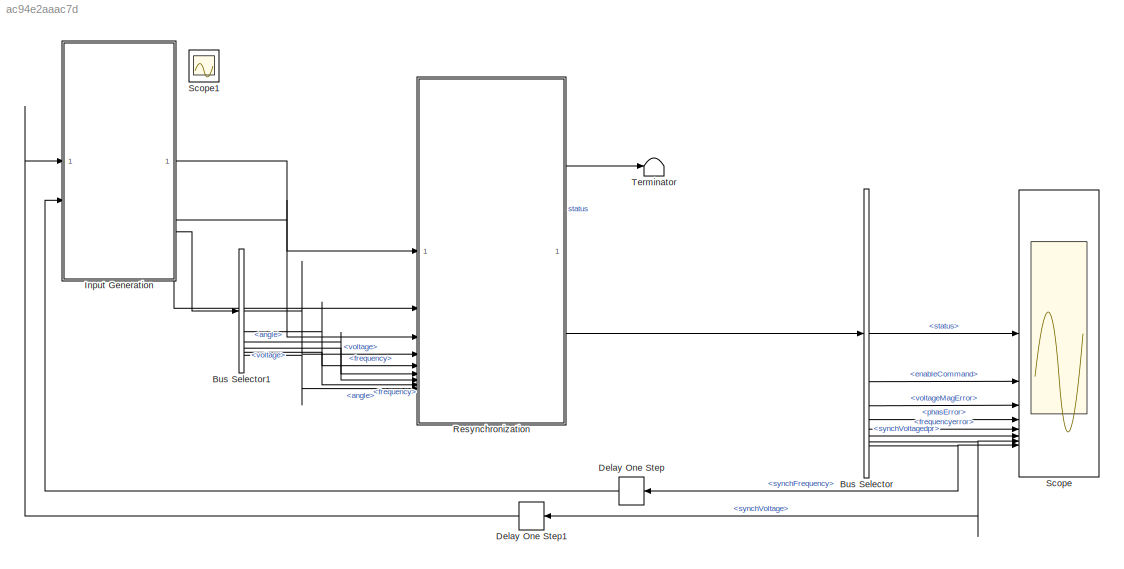
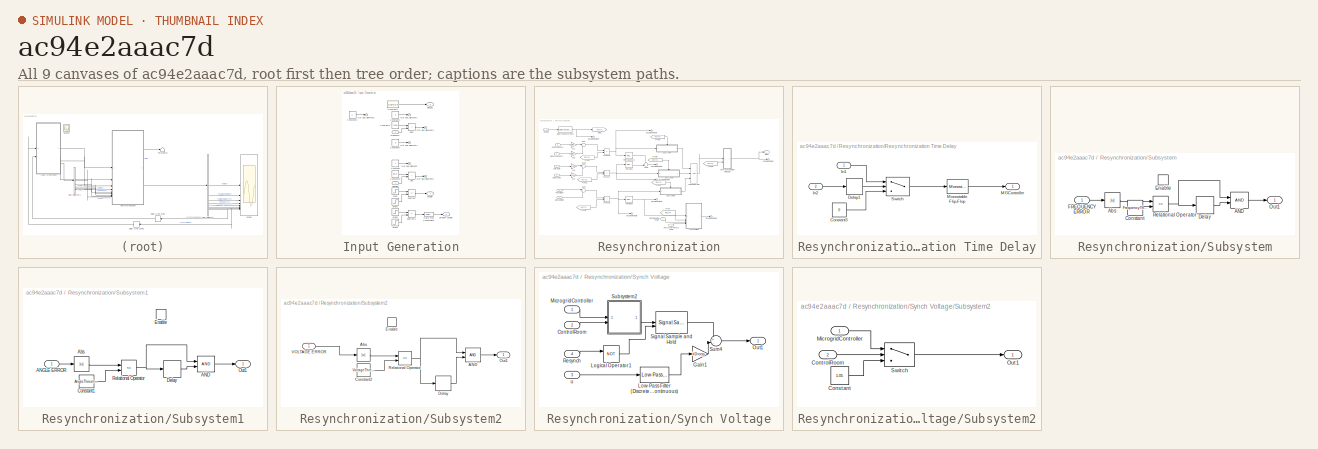
[diagram: thumbnail index - all 9 canvases of the model, root first then tree order]
MODEL slx_ac94e2aaac7d
KIND model
CONFIG AbsTol = auto
CONFIG EnableMultiTasking = off
CONFIG FixedStep = auto
CONFIG MaxStep = auto
CONFIG MinStep = auto
CONFIG PostLoadFcn = ResynchronizationParam;
CONFIG RelTol = 1e-3
CONFIG SampleTimeConstraint = Unconstrained
CONFIG SolverName = FixedStepAuto
CONFIG StartTime = 0.0
CONFIG StopTime = 10
BLOCK [BusSelector] Bus Selector
  OutputSignals = status,enableCommand,voltageMagError,phasError,frequencyerror,synchVoltagedpr,synchVoltage,synchFrequency
BLOCK [BusSelector] Bus Selector1
  OutputSignals = Grid.voltage,Grid.frequency,Grid.angle,Island.voltage,Island.frequency,Island.angle
BLOCK [Delay] Delay One Step
  DelayLength = 1
  InputPortMap = u0
  NameLocation = top
BLOCK [Delay] Delay One Step1
  DelayLength = 1
  InputPortMap = u0
  NameLocation = top
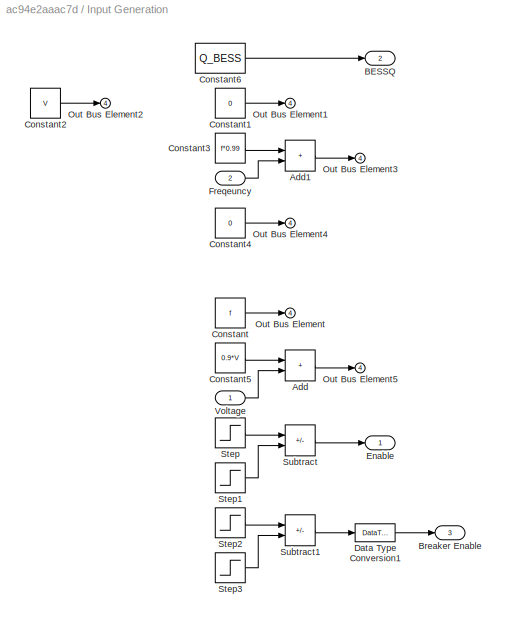
BLOCK [SubSystem] Input Generation
BLOCK [Sum] Input Generation/Add
  IconShape = rectangular
BLOCK [Sum] Input Generation/Add1
  IconShape = rectangular
BLOCK [Outport] Input Generation/BESSQ
  Port = 2
BLOCK [Outport] Input Generation/Breaker Enable
  Port = 3
BLOCK [Constant] Input Generation/Constant
  Value = f
BLOCK [Constant] Input Generation/Constant1
  Value = 0
BLOCK [Constant] Input Generation/Constant2
  Value = V
BLOCK [Constant] Input Generation/Constant3
  Value = f*0.99
BLOCK [Constant] Input Generation/Constant4
  Value = 0
BLOCK [Constant] Input Generation/Constant5
  Value = 0.9*V
BLOCK [Constant] Input Generation/Constant6
  Value = Q_BESS
BLOCK [DataTypeConversion] Input Generation/Data Type Conversion1
  OutDataTypeStr = boolean
  RndMeth = Floor
  SaturateOnIntegerOverflow = off
BLOCK [Outport] Input Generation/Enable
  OutDataTypeStr = double
BLOCK [Inport] Input Generation/Freqeuncy
  Port = 2
BLOCK [Outport] Input Generation/Out Bus Element
  Port = 4
BLOCK [Outport] Input Generation/Out Bus Element1
  Port = 4
BLOCK [Outport] Input Generation/Out Bus Element2
  Port = 4
BLOCK [Outport] Input Generation/Out Bus Element3
  Port = 4
BLOCK [Outport] Input Generation/Out Bus Element4
  Port = 4
BLOCK [Outport] Input Generation/Out Bus Element5
  Port = 4
BLOCK [Step] Input Generation/Step
  SampleTime = 0
  Time = enCmdstart
BLOCK [Step] Input Generation/Step1
  SampleTime = 0
  Time = enCmdstop
BLOCK [Step] Input Generation/Step2
  SampleTime = 0
  Time = resyncBreakTime
BLOCK [Step] Input Generation/Step3
  SampleTime = 0
  Time = resyncBreakTime+2
BLOCK [Sum] Input Generation/Subtract
  IconShape = rectangular
  Inputs = +-
BLOCK [Sum] Input Generation/Subtract1
  IconShape = rectangular
  Inputs = +-
BLOCK [Inport] Input Generation/Voltage
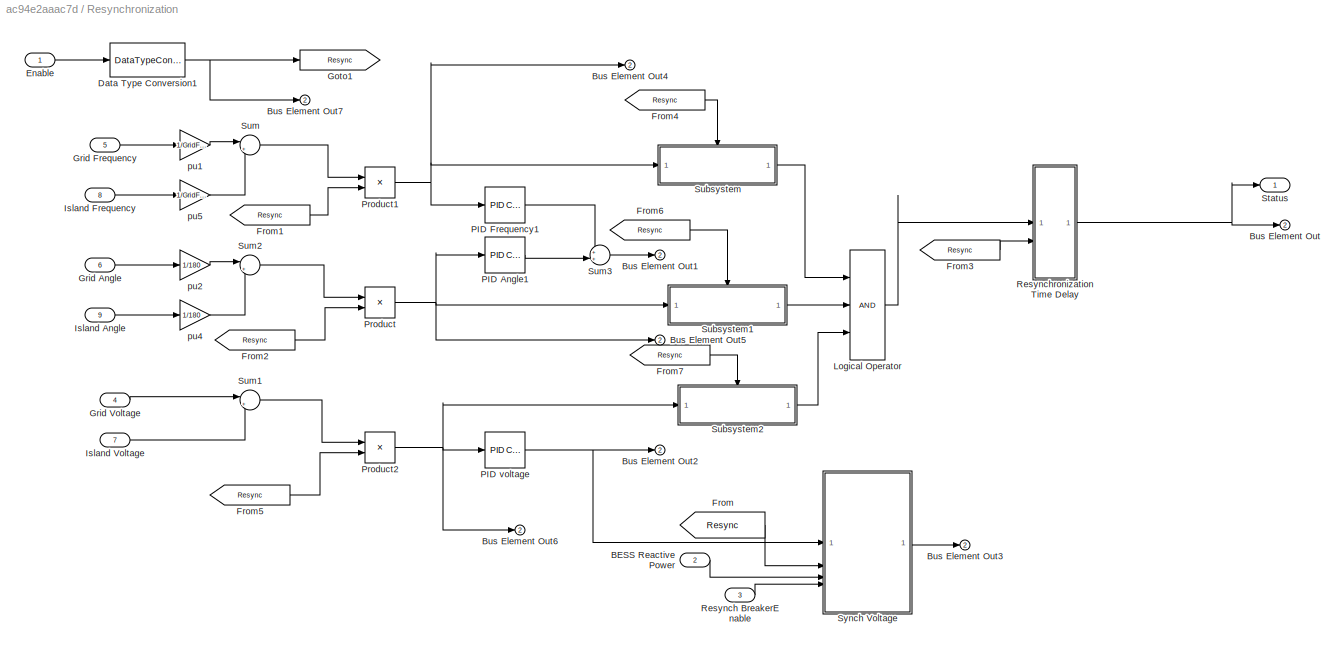
BLOCK [SubSystem] Resynchronization
  CopyFcn = set_param(gcbh,'LinkStatus','none');
BLOCK [Inport] Resynchronization/BESS Reactive Power
  Port = 2
BLOCK [Outport] Resynchronization/Bus Element Out
  Port = 2
BLOCK [Outport] Resynchronization/Bus Element Out1
  Port = 2
BLOCK [Outport] Resynchronization/Bus Element Out2
  Port = 2
BLOCK [Outport] Resynchronization/Bus Element Out3
  Port = 2
BLOCK [Outport] Resynchronization/Bus Element Out4
  Port = 2
BLOCK [Outport] Resynchronization/Bus Element Out5
  Port = 2
BLOCK [Outport] Resynchronization/Bus Element Out6
  Port = 2
BLOCK [Outport] Resynchronization/Bus Element Out7
  Port = 2
BLOCK [DataTypeConversion] Resynchronization/Data Type Conversion1
  OutDataTypeStr = double
  RndMeth = Floor
  SaturateOnIntegerOverflow = off
BLOCK [Inport] Resynchronization/Enable
BLOCK [From] Resynchronization/From
  GotoTag = Resync
BLOCK [From] Resynchronization/From1
  GotoTag = Resync
BLOCK [From] Resynchronization/From2
  GotoTag = Resync
BLOCK [From] Resynchronization/From3
  GotoTag = Resync
BLOCK [From] Resynchronization/From4
  GotoTag = Resync
BLOCK [From] Resynchronization/From5
  GotoTag = Resync
BLOCK [From] Resynchronization/From6
  GotoTag = Resync
BLOCK [From] Resynchronization/From7
  GotoTag = Resync
BLOCK [Goto] Resynchronization/Goto1
  GotoTag = Resync
BLOCK [Inport] Resynchronization/Grid Angle
  Port = 6
BLOCK [Inport] Resynchronization/Grid Frequency
  Port = 5
BLOCK [Inport] Resynchronization/Grid Voltage
  Port = 4
BLOCK [Inport] Resynchronization/Island Angle
  Port = 9
BLOCK [Inport] Resynchronization/Island Frequency
  Port = 8
BLOCK [Inport] Resynchronization/Island Voltage
  Port = 7
BLOCK [Logic] Resynchronization/Logical Operator
  AllPortsSameDT = off
  Inputs = 3
  OutDataTypeStr = boolean
BLOCK [Reference] Resynchronization/PID Angle1  REF=slpidlib/PID Controller
  SourceBlock = slpidlib/PID Controller
  SourceType = PID 1dof
BLOCK [Reference] Resynchronization/PID Frequency1  REF=slpidlib/PID Controller
  SourceBlock = slpidlib/PID Controller
  SourceType = PID 1dof
BLOCK [Reference] Resynchronization/PID voltage  REF=slpidlib/PID Controller
  SourceBlock = slpidlib/PID Controller
  SourceType = PID 1dof
BLOCK [Product] Resynchronization/Product
BLOCK [Product] Resynchronization/Product1
BLOCK [Product] Resynchronization/Product2
BLOCK [Inport] Resynchronization/Resynch BreakerEnable
  Port = 3
BLOCK [SubSystem] Resynchronization/Resynchronization Time Delay
BLOCK [Constant] Resynchronization/Resynchronization Time Delay/Constant3
  Value = 0
BLOCK [Delay] Resynchronization/Resynchronization Time Delay/Delay1
  DelayLength = 100
  InputPortMap = u0
  SampleTime = Ts
BLOCK [Inport] Resynchronization/Resynchronization Time Delay/In1
BLOCK [Inport] Resynchronization/Resynchronization Time Delay/In2
  Port = 2
BLOCK [Outport] Resynchronization/Resynchronization Time Delay/MGController
BLOCK [Reference] Resynchronization/Resynchronization Time Delay/Monostable Flip-Flop  REF=eeGeneralControl/Monostable Flip-Flop
  LibrarySourceBlock = ee_sl_lib/General Control/Monostable Flip-Flop
  SourceBlock = eeGeneralControl/Monostable Flip-Flop
  SourceType = Monostable Flip-Flop
BLOCK [Switch] Resynchronization/Resynchronization Time Delay/Switch
  Criteria = u2 > Threshold
  InputSameDT = off
  SaturateOnIntegerOverflow = off
  Threshold = 0.5
BLOCK [Outport] Resynchronization/Status
BLOCK [SubSystem] Resynchronization/Subsystem
BLOCK [Logic] Resynchronization/Subsystem/AND
  AllPortsSameDT = off
  IconShape = distinctive
  OutDataTypeStr = boolean
BLOCK [Abs] Resynchronization/Subsystem/Abs
  SaturateOnIntegerOverflow = off
BLOCK [Constant] Resynchronization/Subsystem/Constant
  SampleTime = -1
  Value = FrequencyThreshold
BLOCK [Delay] Resynchronization/Subsystem/Delay
  DelayLength = 1000
  InputPortMap = u0
  SampleTime = Ts
BLOCK [EnablePort] Resynchronization/Subsystem/Enable
BLOCK [Inport] Resynchronization/Subsystem/FREQUENCY ERROR
BLOCK [Outport] Resynchronization/Subsystem/Out1
BLOCK [RelationalOperator] Resynchronization/Subsystem/Relational Operator
  InputSameDT = off
  Operator = <=
  OutDataTypeStr = boolean
  RndMeth = Simplest
BLOCK [SubSystem] Resynchronization/Subsystem1
BLOCK [Logic] Resynchronization/Subsystem1/AND
  AllPortsSameDT = off
  IconShape = distinctive
  OutDataTypeStr = boolean
BLOCK [Inport] Resynchronization/Subsystem1/ANGLE ERROR
BLOCK [Abs] Resynchronization/Subsystem1/Abs
  SaturateOnIntegerOverflow = off
BLOCK [Constant] Resynchronization/Subsystem1/Constant1
  Value = AngleThreshold
BLOCK [Delay] Resynchronization/Subsystem1/Delay
  DelayLength = 1000
  InputPortMap = u0
  SampleTime = Ts
BLOCK [EnablePort] Resynchronization/Subsystem1/Enable
BLOCK [Outport] Resynchronization/Subsystem1/Out1
BLOCK [RelationalOperator] Resynchronization/Subsystem1/Relational Operator
  InputSameDT = off
  Operator = <=
  OutDataTypeStr = boolean
  RndMeth = Simplest
BLOCK [SubSystem] Resynchronization/Subsystem2
BLOCK [Logic] Resynchronization/Subsystem2/AND
  AllPortsSameDT = off
  IconShape = distinctive
  OutDataTypeStr = boolean
BLOCK [Abs] Resynchronization/Subsystem2/Abs
  SaturateOnIntegerOverflow = off
BLOCK [Constant] Resynchronization/Subsystem2/Constant2
  Value = VoltageThreshold
BLOCK [Delay] Resynchronization/Subsystem2/Delay
  DelayLength = 1000
  InputPortMap = u0
  SampleTime = Ts
BLOCK [EnablePort] Resynchronization/Subsystem2/Enable
BLOCK [Outport] Resynchronization/Subsystem2/Out1
BLOCK [RelationalOperator] Resynchronization/Subsystem2/Relational Operator
  InputSameDT = off
  Operator = <=
  OutDataTypeStr = boolean
  RndMeth = Simplest
BLOCK [Inport] Resynchronization/Subsystem2/VOLTAGE ERROR
BLOCK [Sum] Resynchronization/Sum
  Inputs = |+-
BLOCK [Sum] Resynchronization/Sum1
  Inputs = |+-
BLOCK [Sum] Resynchronization/Sum2
  Inputs = |+-
BLOCK [Sum] Resynchronization/Sum3
  Inputs = ++|
BLOCK [SubSystem] Resynchronization/Synch Voltage
BLOCK [Inport] Resynchronization/Synch Voltage/ControlRoom
  Port = 2
BLOCK [Gain] Resynchronization/Synch Voltage/Gain1
  Gain = kDroop
BLOCK [Logic] Resynchronization/Synch Voltage/Logical Operator1
  AllPortsSameDT = off
  Operator = NOT
  OutDataTypeStr = boolean
BLOCK [Reference] Resynchronization/Synch Voltage/Low-Pass Filter (Discrete or Continuous)  REF=eeGeneralControl/Low-Pass Filter
(Discrete or Continuous)
  SourceBlock = eeGeneralControl/Low-Pass Filter\n(Discrete or Continuous)
  SourceType = Low-Pass Filter (Discrete or Continuous)
BLOCK [Inport] Resynchronization/Synch Voltage/MicrogridController
BLOCK [Outport] Resynchronization/Synch Voltage/Out1
BLOCK [Inport] Resynchronization/Synch Voltage/Resynch
  Port = 4
BLOCK [Reference] Resynchronization/Synch Voltage/Signal Sample and Hold  REF=eeGeneralControl/Signal Sample and Hold
  LibrarySourceBlock = ee_sl_lib/General Control/Signal Sample and Hold
  SourceBlock = eeGeneralControl/Signal Sample and Hold
  SourceType = Signal Sample-and-Hold
BLOCK [SubSystem] Resynchronization/Synch Voltage/Subsystem2
BLOCK [Constant] Resynchronization/Synch Voltage/Subsystem2/Constant
  Value = 1.05
BLOCK [Inport] Resynchronization/Synch Voltage/Subsystem2/ControlRoom
  Port = 2
BLOCK [Inport] Resynchronization/Synch Voltage/Subsystem2/MicrogridController
BLOCK [Outport] Resynchronization/Synch Voltage/Subsystem2/Out1
BLOCK [Switch] Resynchronization/Synch Voltage/Subsystem2/Switch
  Criteria = u2 > Threshold
  InputSameDT = off
  SaturateOnIntegerOverflow = off
  Threshold = 0.5
BLOCK [Sum] Resynchronization/Synch Voltage/Sum4
  Inputs = +-
BLOCK [Inport] Resynchronization/Synch Voltage/u
  Port = 3
BLOCK [Gain] Resynchronization/pu1
  Gain = 1/GridFrequency
BLOCK [Gain] Resynchronization/pu2
  Gain = 1/180
BLOCK [Gain] Resynchronization/pu4
  Gain = 1/180
  NameLocation = top
BLOCK [Gain] Resynchronization/pu5
  Gain = 1/GridFrequency
BLOCK [Scope] Scope
  ActiveDisplayYMaximum = 1.125
  ActiveDisplayYMinimum = -0.12499999999999997
  Floating = off
  GraphicalSettings = {"Style":{"BackgroundColor":[0.12941176470588237,0.12941176470588237,0.12941176470588237],"AxesColor":[0.07058823529411765,0.07058823529411765,0.07058823529411765],"LabelsColor":[0.8509803921568627,0.8509803921568627,0.8509803921568627],"PreserveColors":false,"Visible":[true,true,true,true,true,true,true,true],"LineStyle":["-","-","-","-","-","-","-","-"],"LineWidth":[1.5,1.5,1.5,1.5,1.5,1.5,1.5,1...<+5020ch>
  LayoutDimensionsString = [4,2]
  MultipleDisplayCache = [{"MaxYLimMag":1.125,"MaxYLimReal":1.125,"MinYLimMag":0,"MinYLimReal":-0.12499999999999997,"PlotAsMagnitudePhase":false,"ShowGrid":true,"ShowLegend":false,"Title":"%<SignalLabel>","YLabel":""},{"MaxYLimMag":1.125,"MaxYLimReal":1.125,"MinYLimMag":0,"MinYLimReal":-0.12499999999999997,"PlotAsMagnitudePhase":false,"ShowGrid":true,"ShowLegend":false,"Title":"%<SignalLabel>","YLabel":""},{"MaxYLimMag":1...<+1229ch>
  NumInputPorts = 8
  ScopeFrameLocation = window
  WasSavedAsWebScope = on
  WindowPosition = [180.000000,153.000000,1928.000000,467.000000,]
BLOCK [Scope] Scope1
  DataLoggingVariableName = ScopeData3
  Floating = off
  GraphicalSettings = {"GraphicalSettings":{"LegacySettings":true,"Style":{"Style":{"AxesColor":"[0 0 0]","ChannelNames":[""],"ColorOrder":"[1 0.909803921568627 0.392156862745098;0.149019607843137 0.549019607843137 0.866666666666667;0.96078431372549 0.466666666666667 0.16078431372549;0.286274509803922 0.858823529411765 0.250980392156863;0.752941176470588 0.36078431372549 0.984313725490196;0.423529411764706 0.9568627450...<+436ch>
  IOType = viewer
  NumInputPorts = 1
  WasSavedAsWebScope = on
BLOCK [Terminator] Terminator
LINE Bus Selector1:1 -> Resynchronization:4
LINE Bus Selector1:2 -> Resynchronization:5
LINE Bus Selector1:3 -> Resynchronization:6
LINE Bus Selector1:4 -> Resynchronization:7
LINE Bus Selector1:5 -> Resynchronization:8
LINE Bus Selector1:6 -> Resynchronization:9
LINE Bus Selector:1 -> Scope:1
LINE Bus Selector:2 -> Scope:2
LINE Bus Selector:3 -> Scope:3
LINE Bus Selector:4 -> Scope:4
LINE Bus Selector:5 -> Scope:5
LINE Bus Selector:6 -> Scope:6
NET Bus Selector:7 -> Delay One Step1:1, Scope:7
NET Bus Selector:8 -> Delay One Step:1, Scope:8
LINE Delay One Step1:1 -> Input Generation:1
LINE Delay One Step:1 -> Input Generation:2
LINE Input Generation/Add1:1 -> Input Generation/Out Bus Element3:1
LINE Input Generation/Add:1 -> Input Generation/Out Bus Element5:1
LINE Input Generation/Constant1:1 -> Input Generation/Out Bus Element1:1
LINE Input Generation/Constant2:1 -> Input Generation/Out Bus Element2:1
LINE Input Generation/Constant3:1 -> Input Generation/Add1:1
LINE Input Generation/Constant4:1 -> Input Generation/Out Bus Element4:1
LINE Input Generation/Constant5:1 -> Input Generation/Add:1
LINE Input Generation/Constant6:1 -> Input Generation/BESSQ:1
LINE Input Generation/Constant:1 -> Input Generation/Out Bus Element:1
LINE Input Generation/Data Type Conversion1:1 -> Input Generation/Breaker Enable:1
LINE Input Generation/Freqeuncy:1 -> Input Generation/Add1:2
LINE Input Generation/Step1:1 -> Input Generation/Subtract:2
LINE Input Generation/Step2:1 -> Input Generation/Subtract1:1
LINE Input Generation/Step3:1 -> Input Generation/Subtract1:2
LINE Input Generation/Step:1 -> Input Generation/Subtract:1
LINE Input Generation/Subtract1:1 -> Input Generation/Data Type Conversion1:1
LINE Input Generation/Subtract:1 -> Input Generation/Enable:1
LINE Input Generation/Voltage:1 -> Input Generation/Add:2
LINE Input Generation:1 -> Resynchronization:1
LINE Input Generation:2 -> Resynchronization:2
LINE Input Generation:3 -> Resynchronization:3
LINE Input Generation:4 -> Bus Selector1:1
LINE Resynchronization/BESS Reactive Power:1 -> Resynchronization/Synch Voltage:3
NET Resynchronization/Data Type Conversion1:1 -> Resynchronization/Bus Element Out7:1, Resynchronization/Goto1:1
LINE Resynchronization/Enable:1 -> Resynchronization/Data Type Conversion1:1
LINE Resynchronization/From1:1 -> Resynchronization/Product1:2
LINE Resynchronization/From2:1 -> Resynchronization/Product:2
LINE Resynchronization/From3:1 -> Resynchronization/Resynchronization Time Delay:2
LINE Resynchronization/From4:1 -> Resynchronization/Subsystem:enable
LINE Resynchronization/From5:1 -> Resynchronization/Product2:2
LINE Resynchronization/From6:1 -> Resynchronization/Subsystem1:enable
LINE Resynchronization/From7:1 -> Resynchronization/Subsystem2:enable
LINE Resynchronization/From:1 -> Resynchronization/Synch Voltage:2
LINE Resynchronization/Grid Angle:1 -> Resynchronization/pu2:1
LINE Resynchronization/Grid Frequency:1 -> Resynchronization/pu1:1
LINE Resynchronization/Grid Voltage:1 -> Resynchronization/Sum1:1
LINE Resynchronization/Island Angle:1 -> Resynchronization/pu4:1
LINE Resynchronization/Island Frequency:1 -> Resynchronization/pu5:1
LINE Resynchronization/Island Voltage:1 -> Resynchronization/Sum1:2
LINE Resynchronization/Logical Operator:1 -> Resynchronization/Resynchronization Time Delay:1
LINE Resynchronization/PID Angle1:1 -> Resynchronization/Sum3:2
LINE Resynchronization/PID Frequency1:1 -> Resynchronization/Sum3:1
NET Resynchronization/PID voltage:1 -> Resynchronization/Bus Element Out2:1, Resynchronization/Synch Voltage:1
NET Resynchronization/Product1:1 -> Resynchronization/Bus Element Out4:1, Resynchronization/PID Frequency1:1, Resynchronization/Subsystem:1
NET Resynchronization/Product2:1 -> Resynchronization/Bus Element Out6:1, Resynchronization/PID voltage:1, Resynchronization/Subsystem2:1
NET Resynchronization/Product:1 -> Resynchronization/Bus Element Out5:1, Resynchronization/PID Angle1:1, Resynchronization/Subsystem1:1
LINE Resynchronization/Resynch BreakerEnable:1 -> Resynchronization/Synch Voltage:4
LINE Resynchronization/Resynchronization Time Delay/Constant3:1 -> Resynchronization/Resynchronization Time Delay/Switch:3
LINE Resynchronization/Resynchronization Time Delay/Delay1:1 -> Resynchronization/Resynchronization Time Delay/Switch:2
LINE Resynchronization/Resynchronization Time Delay/In1:1 -> Resynchronization/Resynchronization Time Delay/Switch:1
LINE Resynchronization/Resynchronization Time Delay/In2:1 -> Resynchronization/Resynchronization Time Delay/Delay1:1
LINE Resynchronization/Resynchronization Time Delay/Monostable Flip-Flop:1 -> Resynchronization/Resynchronization Time Delay/MGController:1
LINE Resynchronization/Resynchronization Time Delay/Switch:1 -> Resynchronization/Resynchronization Time Delay/Monostable Flip-Flop:1
NET Resynchronization/Resynchronization Time Delay:1 -> Resynchronization/Bus Element Out:1, Resynchronization/Status:1
LINE Resynchronization/Subsystem/AND:1 -> Resynchronization/Subsystem/Out1:1
LINE Resynchronization/Subsystem/Abs:1 -> Resynchronization/Subsystem/Relational Operator:1
LINE Resynchronization/Subsystem/Constant:1 -> Resynchronization/Subsystem/Relational Operator:2
LINE Resynchronization/Subsystem/Delay:1 -> Resynchronization/Subsystem/AND:2
LINE Resynchronization/Subsystem/FREQUENCY ERROR:1 -> Resynchronization/Subsystem/Abs:1
NET Resynchronization/Subsystem/Relational Operator:1 -> Resynchronization/Subsystem/AND:1, Resynchronization/Subsystem/Delay:1
LINE Resynchronization/Subsystem1/AND:1 -> Resynchronization/Subsystem1/Out1:1
LINE Resynchronization/Subsystem1/ANGLE ERROR:1 -> Resynchronization/Subsystem1/Abs:1
LINE Resynchronization/Subsystem1/Abs:1 -> Resynchronization/Subsystem1/Relational Operator:1
LINE Resynchronization/Subsystem1/Constant1:1 -> Resynchronization/Subsystem1/Relational Operator:2
LINE Resynchronization/Subsystem1/Delay:1 -> Resynchronization/Subsystem1/AND:2
NET Resynchronization/Subsystem1/Relational Operator:1 -> Resynchronization/Subsystem1/AND:1, Resynchronization/Subsystem1/Delay:1
LINE Resynchronization/Subsystem1:1 -> Resynchronization/Logical Operator:2
LINE Resynchronization/Subsystem2/AND:1 -> Resynchronization/Subsystem2/Out1:1
LINE Resynchronization/Subsystem2/Abs:1 -> Resynchronization/Subsystem2/Relational Operator:1
LINE Resynchronization/Subsystem2/Constant2:1 -> Resynchronization/Subsystem2/Relational Operator:2
LINE Resynchronization/Subsystem2/Delay:1 -> Resynchronization/Subsystem2/AND:2
NET Resynchronization/Subsystem2/Relational Operator:1 -> Resynchronization/Subsystem2/AND:1, Resynchronization/Subsystem2/Delay:1
LINE Resynchronization/Subsystem2/VOLTAGE ERROR:1 -> Resynchronization/Subsystem2/Abs:1
LINE Resynchronization/Subsystem2:1 -> Resynchronization/Logical Operator:3
LINE Resynchronization/Subsystem:1 -> Resynchronization/Logical Operator:1
LINE Resynchronization/Sum1:1 -> Resynchronization/Product2:1
LINE Resynchronization/Sum2:1 -> Resynchronization/Product:1
LINE Resynchronization/Sum3:1 -> Resynchronization/Bus Element Out1:1
LINE Resynchronization/Sum:1 -> Resynchronization/Product1:1
LINE Resynchronization/Synch Voltage/ControlRoom:1 -> Resynchronization/Synch Voltage/Subsystem2:2
LINE Resynchronization/Synch Voltage/Gain1:1 -> Resynchronization/Synch Voltage/Sum4:2
LINE Resynchronization/Synch Voltage/Logical Operator1:1 -> Resynchronization/Synch Voltage/Signal Sample and Hold:2
LINE Resynchronization/Synch Voltage/Low-Pass Filter (Discrete or Continuous):1 -> Resynchronization/Synch Voltage/Gain1:1
LINE Resynchronization/Synch Voltage/MicrogridController:1 -> Resynchronization/Synch Voltage/Subsystem2:1
LINE Resynchronization/Synch Voltage/Resynch:1 -> Resynchronization/Synch Voltage/Logical Operator1:1
LINE Resynchronization/Synch Voltage/Signal Sample and Hold:1 -> Resynchronization/Synch Voltage/Sum4:1
LINE Resynchronization/Synch Voltage/Subsystem2/Constant:1 -> Resynchronization/Synch Voltage/Subsystem2/Switch:3
LINE Resynchronization/Synch Voltage/Subsystem2/ControlRoom:1 -> Resynchronization/Synch Voltage/Subsystem2/Switch:2
LINE Resynchronization/Synch Voltage/Subsystem2/MicrogridController:1 -> Resynchronization/Synch Voltage/Subsystem2/Switch:1
LINE Resynchronization/Synch Voltage/Subsystem2/Switch:1 -> Resynchronization/Synch Voltage/Subsystem2/Out1:1
LINE Resynchronization/Synch Voltage/Subsystem2:1 -> Resynchronization/Synch Voltage/Signal Sample and Hold:1
LINE Resynchronization/Synch Voltage/Sum4:1 -> Resynchronization/Synch Voltage/Out1:1
LINE Resynchronization/Synch Voltage/u:1 -> Resynchronization/Synch Voltage/Low-Pass Filter (Discrete or Continuous):1
LINE Resynchronization/Synch Voltage:1 -> Resynchronization/Bus Element Out3:1
LINE Resynchronization/pu1:1 -> Resynchronization/Sum:1
LINE Resynchronization/pu2:1 -> Resynchronization/Sum2:1
LINE Resynchronization/pu4:1 -> Resynchronization/Sum2:2
LINE Resynchronization/pu5:1 -> Resynchronization/Sum:2
LINE Resynchronization:1 -> Terminator:1
LINE Resynchronization:2 -> Bus Selector:1
note: NET lines group one-source signal fan-out (src -> all destinations, sorted); 1:1 wires keep LINE
